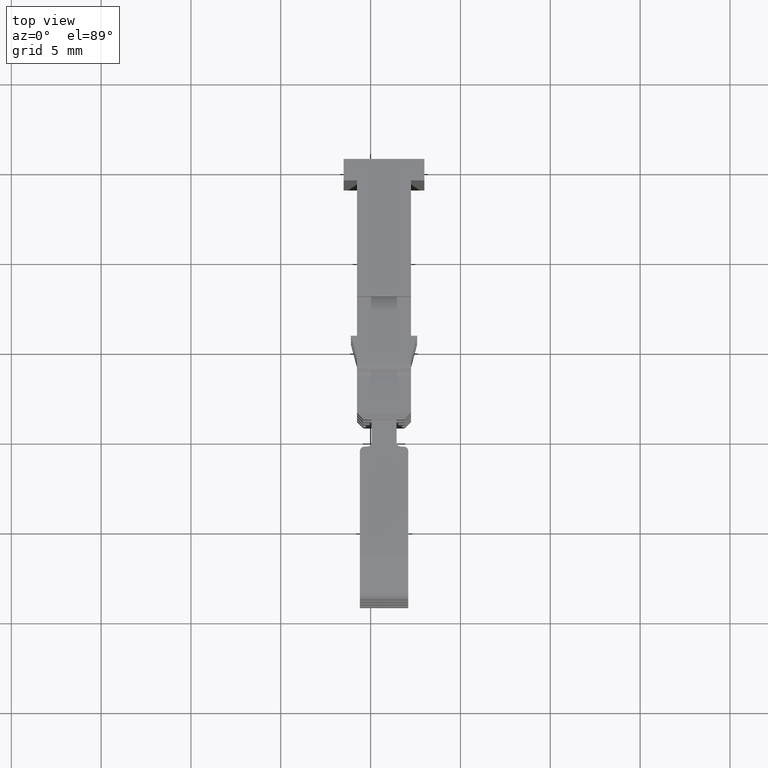
[diagram: clean part render]
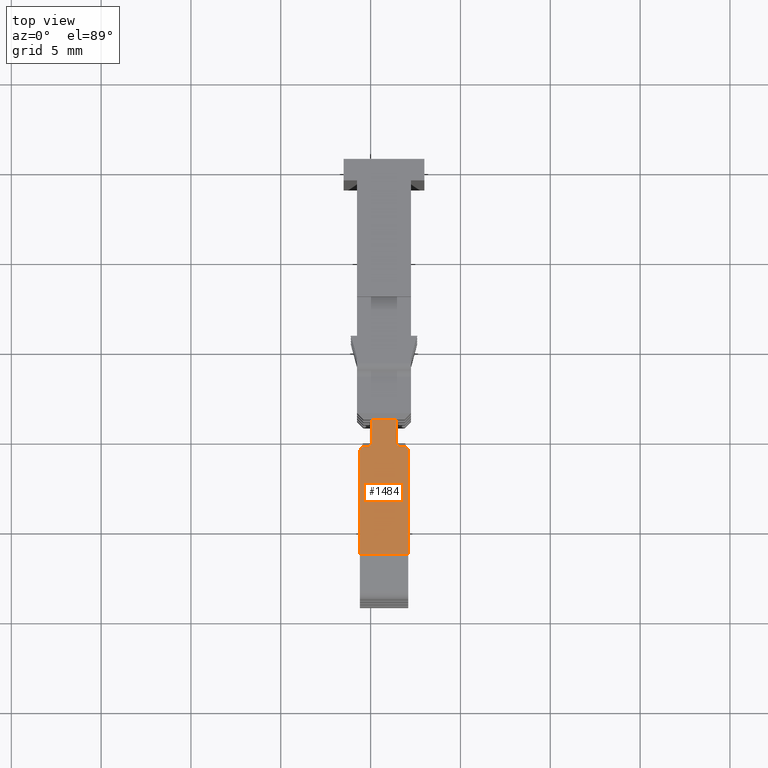
[diagram: same view with one face highlighted and labeled with its STEP entity id]
A machine part, top view. The second image highlights one B-rep face of the part: STEP entity #1484.
In plain terms, the highlighted planar face has unit normal (0, 0, -1).
Its self-contained STEP definition (entity closure, byte-faithful):
#20 = EDGE_LOOP ( 'NONE', ( #653, #694, #693, #649, #678, #747, #762, #757, #723, #737, #760, #745 ) ) ;
#300 = VERTEX_POINT ( 'NONE', #2287 ) ;
#306 = VERTEX_POINT ( 'NONE', #2245 ) ;
#310 = VERTEX_POINT ( 'NONE', #2240 ) ;
#317 = VERTEX_POINT ( 'NONE', #2233 ) ;
#326 = VERTEX_POINT ( 'NONE', #2303 ) ;
#338 = VERTEX_POINT ( 'NONE', #2306 ) ;
#346 = VERTEX_POINT ( 'NONE', #2326 ) ;
#347 = VERTEX_POINT ( 'NONE', #2333 ) ;
#371 = VERTEX_POINT ( 'NONE', #2315 ) ;
#374 = VERTEX_POINT ( 'NONE', #2343 ) ;
#379 = VERTEX_POINT ( 'NONE', #2344 ) ;
#443 = VERTEX_POINT ( 'NONE', #2363 ) ;
#649 = ORIENTED_EDGE ( 'NONE', *, *, #1199, .F. ) ;
#653 = ORIENTED_EDGE ( 'NONE', *, *, #1198, .F. ) ;
#678 = ORIENTED_EDGE ( 'NONE', *, *, #1210, .F. ) ;
#693 = ORIENTED_EDGE ( 'NONE', *, *, #1213, .F. ) ;
#694 = ORIENTED_EDGE ( 'NONE', *, *, #1261, .F. ) ;
#723 = ORIENTED_EDGE ( 'NONE', *, *, #1236, .T. ) ;
#737 = ORIENTED_EDGE ( 'NONE', *, *, #1254, .T. ) ;
#745 = ORIENTED_EDGE ( 'NONE', *, *, #1200, .F. ) ;
#747 = ORIENTED_EDGE ( 'NONE', *, *, #1259, .F. ) ;
#757 = ORIENTED_EDGE ( 'NONE', *, *, #1271, .T. ) ;
#760 = ORIENTED_EDGE ( 'NONE', *, *, #1255, .F. ) ;
#762 = ORIENTED_EDGE ( 'NONE', *, *, #1302, .F. ) ;
#1198 = EDGE_CURVE ( 'NONE', #371, #317, #3229, .T. ) ;
#1199 = EDGE_CURVE ( 'NONE', #300, #306, #3856, .T. ) ;
#1200 = EDGE_CURVE ( 'NONE', #317, #379, #3831, .T. ) ;
#1210 = EDGE_CURVE ( 'NONE', #310, #300, #3191, .T. ) ;
#1213 = EDGE_CURVE ( 'NONE', #306, #338, #3916, .T. ) ;
#1236 = EDGE_CURVE ( 'NONE', #443, #346, #3922, .T. ) ;
#1254 = EDGE_CURVE ( 'NONE', #346, #347, #4051, .T. ) ;
#1255 = EDGE_CURVE ( 'NONE', #379, #347, #3253, .T. ) ;
#1259 = EDGE_CURVE ( 'NONE', #326, #310, #4016, .T. ) ;
#1261 = EDGE_CURVE ( 'NONE', #338, #371, #4029, .T. ) ;
#1271 = EDGE_CURVE ( 'NONE', #374, #443, #4094, .T. ) ;
#1302 = EDGE_CURVE ( 'NONE', #374, #326, #3287, .T. ) ;
#1484 = ADVANCED_FACE ( 'NONE', ( #5315 ), #5265, .F. ) ;
#2233 = CARTESIAN_POINT ( 'NONE',  ( 111.6952529172784100, 244.3315789080036500, 170.7398226793859200 ) ) ;
#2240 = CARTESIAN_POINT ( 'NONE',  ( 109.8052529172787800, 244.3315789080035100, 170.7398226793859200 ) ) ;
#2245 = CARTESIAN_POINT ( 'NONE',  ( 110.0552529172784100, 245.8315789080019200, 170.7398226793859200 ) ) ;
#2287 = CARTESIAN_POINT ( 'NONE',  ( 110.0552529172787200, 244.5815789080035100, 170.7398226793859200 ) ) ;
#2303 = CARTESIAN_POINT ( 'NONE',  ( 109.6524523974264700, 244.3315789080035100, 170.7398226793859500 ) ) ;
#2306 = CARTESIAN_POINT ( 'NONE',  ( 111.4452529172780700, 245.8315789080019700, 170.7398226793859200 ) ) ;
#2315 = CARTESIAN_POINT ( 'NONE',  ( 111.4452529172782500, 244.5815789080036500, 170.7398226793859200 ) ) ;
#2326 = CARTESIAN_POINT ( 'NONE',  ( 112.0980534371292800, 238.3134866759713500, 170.7398226793860100 ) ) ;
#2333 = CARTESIAN_POINT ( 'NONE',  ( 112.0980534371294700, 244.0815789080036500, 170.7398226793859200 ) ) ;
#2343 = CARTESIAN_POINT ( 'NONE',  ( 109.4024523974264700, 244.0815789080034800, 170.7398226793859800 ) ) ;
#2344 = CARTESIAN_POINT ( 'NONE',  ( 111.8480534371294700, 244.3315789080036500, 170.7398226793859200 ) ) ;
#2363 = CARTESIAN_POINT ( 'NONE',  ( 109.4024523974269600, 238.3134866759716000, 170.7398226793860100 ) ) ;
#3182 = VECTOR ( 'NONE', #3874, 1000.000000000000000 ) ;
#3183 = VECTOR ( 'NONE', #3837, 1000.000000000000000 ) ;
#3191 = CIRCLE ( 'NONE', #3222, 0.2500000000000002200 ) ;
#3208 = AXIS2_PLACEMENT_3D ( 'NONE', #3855, #3848, #3847 ) ;
#3222 = AXIS2_PLACEMENT_3D ( 'NONE', #3909, #3920, #3903 ) ;
#3229 = CIRCLE ( 'NONE', #3208, 0.2500000000000002200 ) ;
#3238 = VECTOR ( 'NONE', #3921, 1000.000000000000000 ) ;
#3248 = VECTOR ( 'NONE', #3974, 1000.000000000000000 ) ;
#3252 = VECTOR ( 'NONE', #4037, 1000.000000000000000 ) ;
#3253 = CIRCLE ( 'NONE', #3254, 0.2500000000000002200 ) ;
#3254 = AXIS2_PLACEMENT_3D ( 'NONE', #4057, #4025, #4054 ) ;
#3260 = VECTOR ( 'NONE', #4027, 1000.000000000000000 ) ;
#3287 = CIRCLE ( 'NONE', #3327, 0.2500000000000002200 ) ;
#3302 = VECTOR ( 'NONE', #4030, 1000.000000000000000 ) ;
#3313 = VECTOR ( 'NONE', #4071, 1000.000000000000000 ) ;
#3327 = AXIS2_PLACEMENT_3D ( 'NONE', #4199, #4193, #4177 ) ;
#3518 = AXIS2_PLACEMENT_3D ( 'NONE', #5284, #5285, #5286 ) ;
#3831 = LINE ( 'NONE', #3866, #3183 ) ;
#3837 = DIRECTION ( 'NONE',  ( 1.000000000000000000, -1.082325581281608900E-028, 7.193572994223691600E-015 ) ) ;
#3847 = DIRECTION ( 'NONE',  ( -1.000000000000000000, 0.0000000000000000000, 0.0000000000000000000 ) ) ;
#3848 = DIRECTION ( 'NONE',  ( -7.193572994224081300E-015, 5.441398086520266300E-029, 1.000000000000000000 ) ) ;
#3855 = CARTESIAN_POINT ( 'NONE',  ( 111.6952529172784100, 244.5815789080036500, 170.7398226793859200 ) ) ;
#3856 = LINE ( 'NONE', #3873, #3182 ) ;
#3866 = CARTESIAN_POINT ( 'NONE',  ( 110.0552529172779500, 244.3315789080036500, 170.7398226793859200 ) ) ;
#3873 = CARTESIAN_POINT ( 'NONE',  ( 110.0552529172786400, 248.6101602476015000, 170.7398226793859800 ) ) ;
#3874 = DIRECTION ( 'NONE',  ( 0.0000000000000000000, 1.000000000000000000, 1.504573015594193100E-014 ) ) ;
#3903 = DIRECTION ( 'NONE',  ( 1.000000000000000000, 0.0000000000000000000, 0.0000000000000000000 ) ) ;
#3908 = CARTESIAN_POINT ( 'NONE',  ( 110.0552529172779500, 245.8315789080019200, 170.7398226793859200 ) ) ;
#3909 = CARTESIAN_POINT ( 'NONE',  ( 109.8052529172787800, 244.5815789080035100, 170.7398226793859200 ) ) ;
#3916 = LINE ( 'NONE', #3908, #3238 ) ;
#3920 = DIRECTION ( 'NONE',  ( -7.193572994224081300E-015, 5.441398086520266300E-029, 1.000000000000000000 ) ) ;
#3921 = DIRECTION ( 'NONE',  ( 1.000000000000000000, -1.082325581281608900E-028, 7.193572994223691600E-015 ) ) ;
#3922 = LINE ( 'NONE', #3935, #3248 ) ;
#3935 = CARTESIAN_POINT ( 'NONE',  ( 100.4203046668917900, 238.3134866759713500, 170.7398226793859800 ) ) ;
#3974 = DIRECTION ( 'NONE',  ( 1.000000000000000000, -4.330137321518562800E-016, 2.455742906799131200E-015 ) ) ;
#4016 = LINE ( 'NONE', #4055, #3260 ) ;
#4021 = CARTESIAN_POINT ( 'NONE',  ( 111.4452529172780700, 248.6101602476015000, 170.7398226793859800 ) ) ;
#4025 = DIRECTION ( 'NONE',  ( 7.193572994222961100E-015, -5.441398086523228100E-029, -1.000000000000000000 ) ) ;
#4027 = DIRECTION ( 'NONE',  ( 1.000000000000000000, -1.082325581281608900E-028, 7.193572994223691600E-015 ) ) ;
#4029 = LINE ( 'NONE', #4021, #3302 ) ;
#4030 = DIRECTION ( 'NONE',  ( -0.0000000000000000000, -1.000000000000000000, -1.504573015594193100E-014 ) ) ;
#4037 = DIRECTION ( 'NONE',  ( 3.142629004551421700E-014, 1.000000000000000000, -0.0000000000000000000 ) ) ;
#4038 = CARTESIAN_POINT ( 'NONE',  ( 112.0980534371294900, 244.7827890380865500, 170.7398226793859000 ) ) ;
#4051 = LINE ( 'NONE', #4038, #3252 ) ;
#4054 = DIRECTION ( 'NONE',  ( 1.000000000000000000, 0.0000000000000000000, 0.0000000000000000000 ) ) ;
#4055 = CARTESIAN_POINT ( 'NONE',  ( 110.0552529172779500, 244.3315789080035100, 170.7398226793859200 ) ) ;
#4057 = CARTESIAN_POINT ( 'NONE',  ( 111.8480534371294700, 244.0815789080036500, 170.7398226793859500 ) ) ;
#4071 = DIRECTION ( 'NONE',  ( 8.429940185974501000E-014, -1.000000000000000000, -0.0000000000000000000 ) ) ;
#4074 = CARTESIAN_POINT ( 'NONE',  ( 109.4024523974264200, 244.7827890380865500, 170.7398226793859800 ) ) ;
#4094 = LINE ( 'NONE', #4074, #3313 ) ;
#4177 = DIRECTION ( 'NONE',  ( 1.000000000000000000, 0.0000000000000000000, 0.0000000000000000000 ) ) ;
#4193 = DIRECTION ( 'NONE',  ( 7.193572994225531200E-015, -5.441398086516434600E-029, -1.000000000000000000 ) ) ;
#4199 = CARTESIAN_POINT ( 'NONE',  ( 109.6524523974264700, 244.0815789080035100, 170.7398226793859800 ) ) ;
#5265 = PLANE ( 'NONE',  #3518 ) ;
#5284 = CARTESIAN_POINT ( 'NONE',  ( 110.0552529172779500, 248.6101602476015000, 170.7398226793859800 ) ) ;
#5285 = DIRECTION ( 'NONE',  ( 7.193572994223691600E-015, 1.504573015594193100E-014, -1.000000000000000000 ) ) ;
#5286 = DIRECTION ( 'NONE',  ( 0.0000000000000000000, 1.000000000000000000, 1.504573015594193100E-014 ) ) ;
#5315 = FACE_OUTER_BOUND ( 'NONE', #20, .T. ) ;